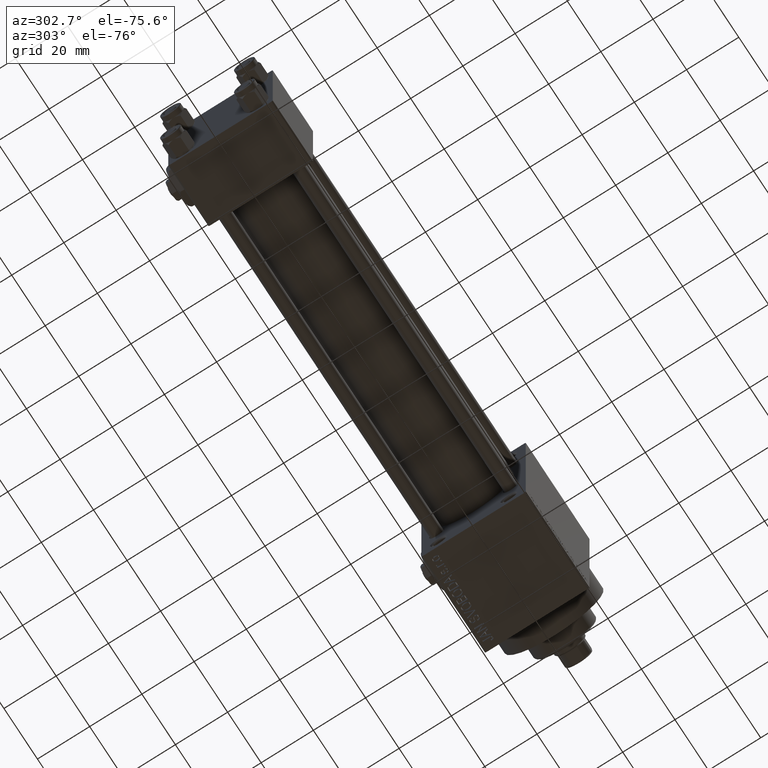
[diagram: clean part render]
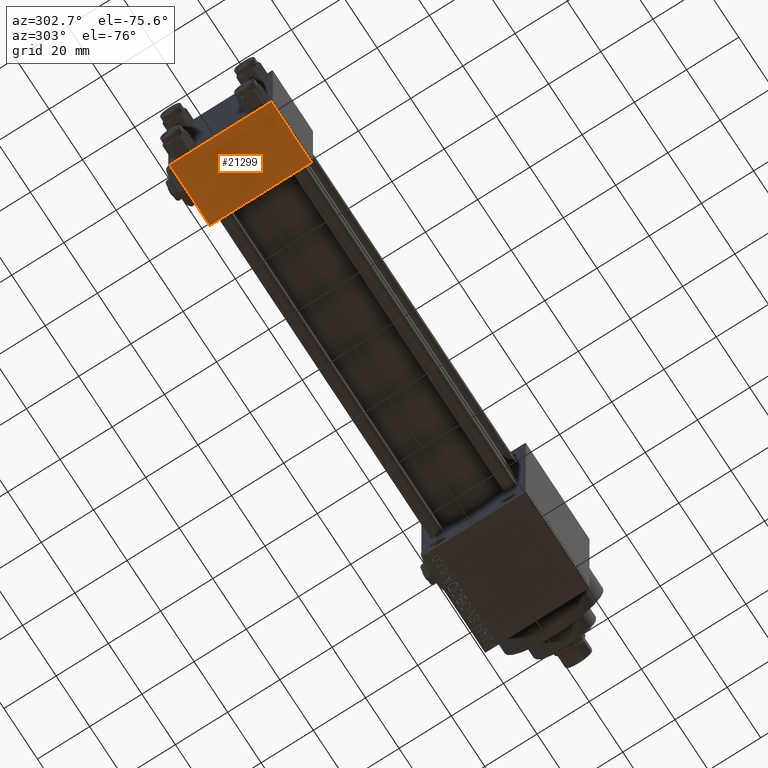
[diagram: same view with one face highlighted and labeled with its STEP entity id]
A machine part, auxiliary view. The second image highlights one B-rep face of the part: STEP entity #21299.
In plain terms, the highlighted planar face has unit normal (0, -0, -1).
Its self-contained STEP definition (entity closure, byte-faithful):
#1415 = DIRECTION ( 'NONE',  ( 1.000000000000000000, 0.000000000000000000, 0.000000000000000000 ) ) ;
#1883 = ORIENTED_EDGE ( 'NONE', *, *, #36580, .T. ) ;
#2131 = LINE ( 'NONE', #43586, #45908 ) ;
#7111 = CARTESIAN_POINT ( 'NONE',  ( 0.000000000000000000, 19.50000000000000711, -20.00000000000000711 ) ) ;
#9185 = CARTESIAN_POINT ( 'NONE',  ( 0.000000000000000000, -19.50000000000000711, -20.00000000000000000 ) ) ;
#9560 = EDGE_CURVE ( 'NONE', #13990, #13856, #48838, .T. ) ;
#13856 = VERTEX_POINT ( 'NONE', #9185 ) ;
#13990 = VERTEX_POINT ( 'NONE', #25319 ) ;
#15450 = DIRECTION ( 'NONE',  ( 0.000000000000000000, -1.734723475976806848E-16, -1.000000000000000000 ) ) ;
#16621 = FACE_OUTER_BOUND ( 'NONE', #19895, .T. ) ;
#16747 = CARTESIAN_POINT ( 'NONE',  ( 24.00000000000000000, 19.50000000000000711, -20.00000000000000711 ) ) ;
#17682 = VERTEX_POINT ( 'NONE', #7111 ) ;
#18548 = CARTESIAN_POINT ( 'NONE',  ( 0.000000000000000000, -19.50000000000000711, -20.00000000000000000 ) ) ;
#19895 = EDGE_LOOP ( 'NONE', ( #32654, #31095, #1883, #44481 ) ) ;
#21299 = ADVANCED_FACE ( 'NONE', ( #16621 ), #31783, .T. ) ;
#23389 = AXIS2_PLACEMENT_3D ( 'NONE', #46917, #15450, #26158 ) ;
#25319 = CARTESIAN_POINT ( 'NONE',  ( 24.00000000000000000, -19.50000000000000711, -20.00000000000000000 ) ) ;
#26158 = DIRECTION ( 'NONE',  ( 0.000000000000000000, 1.000000000000000000, -1.734723475976806848E-16 ) ) ;
#31095 = ORIENTED_EDGE ( 'NONE', *, *, #44070, .T. ) ;
#31555 = VECTOR ( 'NONE', #42352, 1000.000000000000000 ) ;
#31701 = VECTOR ( 'NONE', #1415, 1000.000000000000000 ) ;
#31783 = PLANE ( 'NONE',  #23389 ) ;
#32654 = ORIENTED_EDGE ( 'NONE', *, *, #43320, .F. ) ;
#34990 = VECTOR ( 'NONE', #47858, 1000.000000000000000 ) ;
#36580 = EDGE_CURVE ( 'NONE', #36647, #13990, #45334, .T. ) ;
#36647 = VERTEX_POINT ( 'NONE', #16747 ) ;
#38379 = CARTESIAN_POINT ( 'NONE',  ( 24.00000000000000000, 20.00000000000000000, -20.00000000000000711 ) ) ;
#38895 = CARTESIAN_POINT ( 'NONE',  ( 24.00000000000000000, 19.50000000000000711, -20.00000000000000711 ) ) ;
#42352 = DIRECTION ( 'NONE',  ( 0.000000000000000000, -1.000000000000000000, 1.734723475976807094E-16 ) ) ;
#43320 = EDGE_CURVE ( 'NONE', #17682, #13856, #2131, .T. ) ;
#43586 = CARTESIAN_POINT ( 'NONE',  ( 0.000000000000000000, 20.00000000000000000, -20.00000000000000711 ) ) ;
#44070 = EDGE_CURVE ( 'NONE', #17682, #36647, #46336, .T. ) ;
#44481 = ORIENTED_EDGE ( 'NONE', *, *, #9560, .T. ) ;
#45334 = LINE ( 'NONE', #38379, #31555 ) ;
#45908 = VECTOR ( 'NONE', #47303, 1000.000000000000000 ) ;
#46336 = LINE ( 'NONE', #38895, #31701 ) ;
#46917 = CARTESIAN_POINT ( 'NONE',  ( 24.00000000000000000, 20.00000000000000000, -20.00000000000000711 ) ) ;
#47303 = DIRECTION ( 'NONE',  ( 0.000000000000000000, -1.000000000000000000, 1.734723475976807094E-16 ) ) ;
#47858 = DIRECTION ( 'NONE',  ( -1.000000000000000000, 0.000000000000000000, 0.000000000000000000 ) ) ;
#48838 = LINE ( 'NONE', #18548, #34990 ) ;